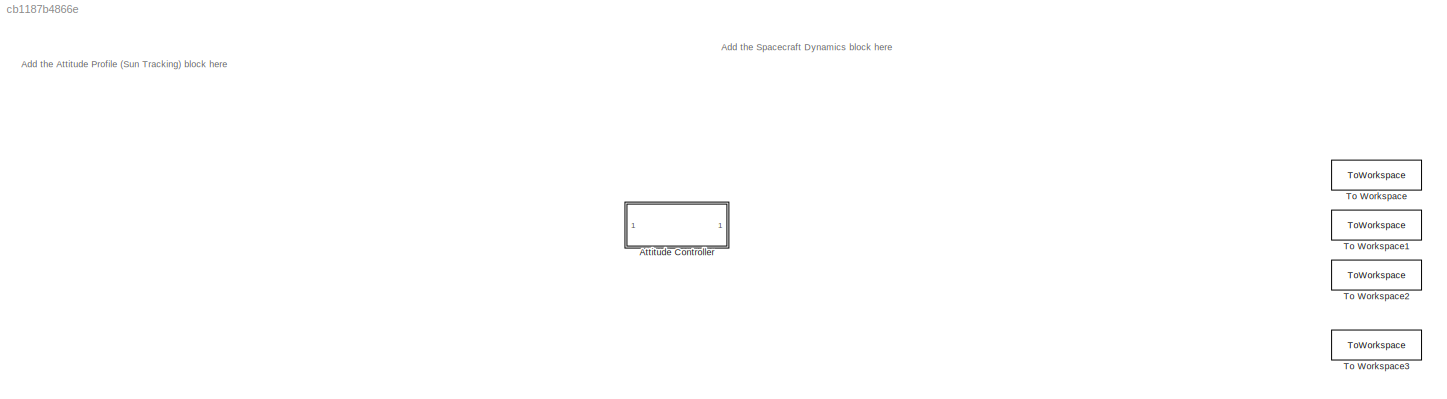
MODEL slx_cb1187b4866e
KIND model
CONFIG AbsTol = 1e-7
CONFIG EnableMultiTasking = off
CONFIG FixedStep = auto
CONFIG MaxStep = 10
CONFIG MinStep = auto
CONFIG RelTol = 1e-7
CONFIG SampleTimeConstraint = Unconstrained
CONFIG SolverName = ode45
CONFIG StartTime = 0.0
CONFIG StopTime = 24*60*60
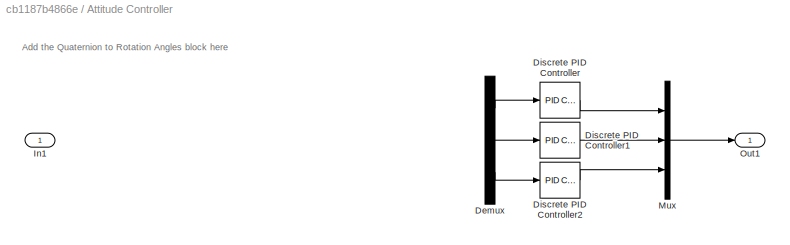
BLOCK [SubSystem] Attitude Controller
BLOCK [Demux] Attitude Controller/Demux
  Outputs = 3
BLOCK [Reference] Attitude Controller/Discrete PID Controller  REF=slpidlib/PID Controller
  LibrarySourceBlock = simulink/Discrete/Discrete PID Controller
  SourceBlock = slpidlib/PID Controller
  SourceType = PID 1dof
BLOCK [Reference] Attitude Controller/Discrete PID Controller1  REF=slpidlib/PID Controller
  LibrarySourceBlock = simulink/Discrete/Discrete PID Controller
  SourceBlock = slpidlib/PID Controller
  SourceType = PID 1dof
BLOCK [Reference] Attitude Controller/Discrete PID Controller2  REF=slpidlib/PID Controller
  LibrarySourceBlock = simulink/Discrete/Discrete PID Controller
  SourceBlock = slpidlib/PID Controller
  SourceType = PID 1dof
BLOCK [Inport] Attitude Controller/In1
BLOCK [Mux] Attitude Controller/Mux
  DisplayOption = bar
  Inputs = 3
BLOCK [Outport] Attitude Controller/Out1
BLOCK [ToWorkspace] To Workspace
  FixptAsFi = on
  MaxDataPoints = inf
  SampleTime = -1
  Save2DSignal = 2-D array (concatenate along first dimension)
  VariableName = positionData
BLOCK [ToWorkspace] To Workspace1
  FixptAsFi = on
  MaxDataPoints = inf
  SampleTime = -1
  Save2DSignal = 2-D array (concatenate along first dimension)
  VariableName = velocityData
BLOCK [ToWorkspace] To Workspace2
  FixptAsFi = on
  MaxDataPoints = inf
  SampleTime = -1
  Save2DSignal = 2-D array (concatenate along first dimension)
  VariableName = timeData
BLOCK [ToWorkspace] To Workspace3
  FixptAsFi = on
  MaxDataPoints = inf
  SampleTime = -1
  SaveFormat = Timeseries
  VariableName = quatData
ANNOTATION (root): Add the Attitude Profile (Sun Tracking) block here
ANNOTATION (root): Add the Spacecraft Dynamics block here
ANNOTATION Attitude Controller: Add the Quaternion to Rotation Angles block here
LINE Attitude Controller/Demux:1 -> Attitude Controller/Discrete PID Controller:1
LINE Attitude Controller/Demux:2 -> Attitude Controller/Discrete PID Controller1:1
LINE Attitude Controller/Demux:3 -> Attitude Controller/Discrete PID Controller2:1
LINE Attitude Controller/Discrete PID Controller1:1 -> Attitude Controller/Mux:2
LINE Attitude Controller/Discrete PID Controller2:1 -> Attitude Controller/Mux:3
LINE Attitude Controller/Discrete PID Controller:1 -> Attitude Controller/Mux:1
LINE Attitude Controller/Mux:1 -> Attitude Controller/Out1:1
